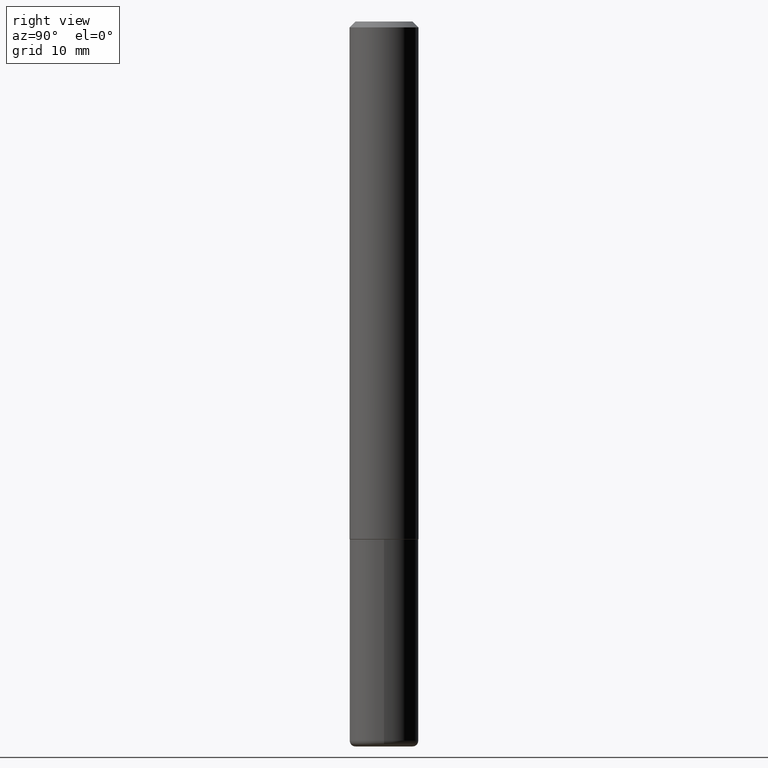
[diagram: clean part render]
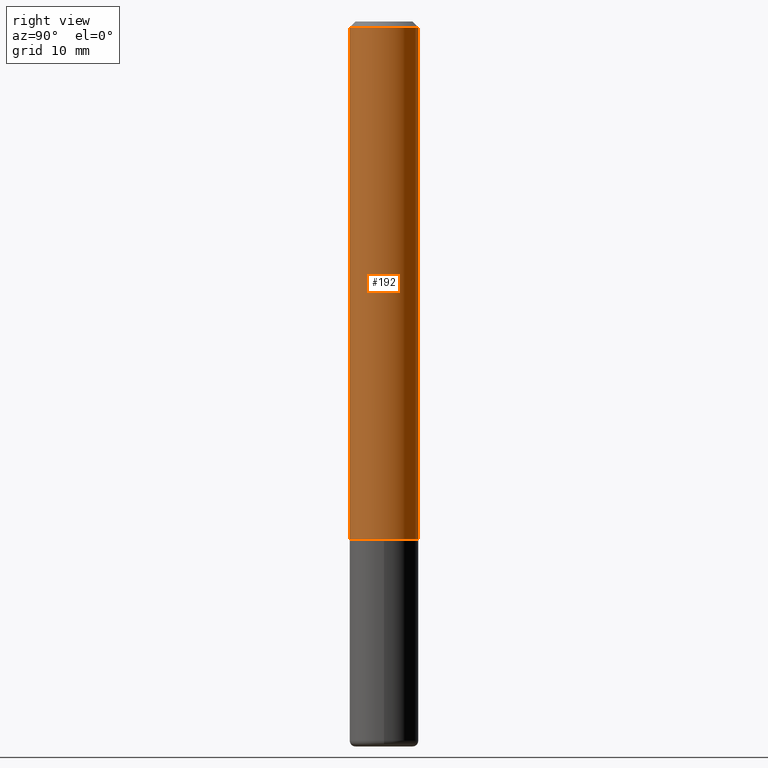
[diagram: same view with one face highlighted and labeled with its STEP entity id]
A machine part, right view. The second image highlights one B-rep face of the part: STEP entity #192.
In plain terms, the highlighted cylindrical surface (edge-blend (fillet) strip) has radius 2.9997 mm, axis along (-0, 0, 1).
Its self-contained STEP definition (entity closure, byte-faithful):
#4 = CARTESIAN_POINT ( 'NONE',  ( 4.886477535132384121E-31, -6.989349762142808870E-17, -0.02000000000000004205 ) ) ;
#17 = CARTESIAN_POINT ( 'NONE',  ( -8.102248135368172434E-16, -0.1181000000000000660, -0.01999999999999962919 ) ) ;
#21 = DIRECTION ( 'NONE',  ( -6.982962677686265922E-15, -1.000000000000000000, 4.626330217890360659E-15 ) ) ;
#30 = DIRECTION ( 'NONE',  ( -2.443238767566187138E-29, 3.494674881071397310E-15, 1.000000000000000000 ) ) ;
#35 = CARTESIAN_POINT ( 'NONE',  ( -8.246878922347488542E-16, -0.1181000000000001215, 4.127211034545323724E-16 ) ) ;
#41 = EDGE_CURVE ( 'NONE', #156, #371, #244, .T. ) ;
#42 = CARTESIAN_POINT ( 'NONE',  ( 8.391509709327014685E-16, 0.1180999999999940708, -1.770600000000000840 ) ) ;
#43 = ORIENTED_EDGE ( 'NONE', *, *, #129, .F. ) ;
#52 = AXIS2_PLACEMENT_3D ( 'NONE', #107, #232, #21 ) ;
#67 = AXIS2_PLACEMENT_3D ( 'NONE', #375, #310, #214 ) ;
#91 = CARTESIAN_POINT ( 'NONE',  ( 8.391509709326790846E-16, 0.1181000000000001215, -4.127211034545323724E-16 ) ) ;
#96 = EDGE_CURVE ( 'NONE', #275, #371, #145, .T. ) ;
#102 = VECTOR ( 'NONE', #30, 39.37007874015748143 ) ;
#107 = CARTESIAN_POINT ( 'NONE',  ( 4.325998561852691348E-29, -6.187671344425017014E-15, -1.770600000000000174 ) ) ;
#121 = ORIENTED_EDGE ( 'NONE', *, *, #401, .T. ) ;
#129 = EDGE_CURVE ( 'NONE', #144, #275, #230, .T. ) ;
#130 = DIRECTION ( 'NONE',  ( -2.443238767566187138E-29, 3.494674881071396916E-15, 1.000000000000000000 ) ) ;
#144 = VERTEX_POINT ( 'NONE', #228 ) ;
#145 = CIRCLE ( 'NONE', #197, 0.1180999999999999966 ) ;
#147 = CYLINDRICAL_SURFACE ( 'NONE', #67, 0.1181000000000001215 ) ;
#156 = VERTEX_POINT ( 'NONE', #42 ) ;
#178 = ORIENTED_EDGE ( 'NONE', *, *, #41, .T. ) ;
#188 = VECTOR ( 'NONE', #355, 39.37007874015748143 ) ;
#192 = ADVANCED_FACE ( 'NONE', ( #372 ), #147, .T. ) ;
#197 = AXIS2_PLACEMENT_3D ( 'NONE', #4, #130, #201 ) ;
#201 = DIRECTION ( 'NONE',  ( -6.982962677686265922E-15, -1.000000000000000000, 3.505890868245046092E-15 ) ) ;
#206 = CIRCLE ( 'NONE', #52, 0.1181000000000002326 ) ;
#214 = DIRECTION ( 'NONE',  ( -6.982962677686265922E-15, -1.000000000000000000, 3.494674881071396522E-15 ) ) ;
#228 = CARTESIAN_POINT ( 'NONE',  ( -8.246878922347063544E-16, -0.1181000000000064221, -1.770599999999999730 ) ) ;
#230 = LINE ( 'NONE', #35, #102 ) ;
#232 = DIRECTION ( 'NONE',  ( -2.443238767566187138E-29, 3.494674881071396916E-15, 1.000000000000000000 ) ) ;
#240 = ORIENTED_EDGE ( 'NONE', *, *, #96, .F. ) ;
#244 = LINE ( 'NONE', #91, #188 ) ;
#275 = VERTEX_POINT ( 'NONE', #17 ) ;
#304 = CARTESIAN_POINT ( 'NONE',  ( 8.246878922347484598E-16, 0.1180999999999999273, -0.02000000000000045838 ) ) ;
#310 = DIRECTION ( 'NONE',  ( -2.443238767566187138E-29, 3.494674881071396916E-15, 1.000000000000000000 ) ) ;
#355 = DIRECTION ( 'NONE',  ( -2.443238767566187138E-29, 3.494674881071397310E-15, 1.000000000000000000 ) ) ;
#371 = VERTEX_POINT ( 'NONE', #304 ) ;
#372 = FACE_OUTER_BOUND ( 'NONE', #400, .T. ) ;
#375 = CARTESIAN_POINT ( 'NONE',  ( 0.000000000000000000, 0.000000000000000000, 0.000000000000000000 ) ) ;
#400 = EDGE_LOOP ( 'NONE', ( #121, #178, #240, #43 ) ) ;
#401 = EDGE_CURVE ( 'NONE', #144, #156, #206, .T. ) ;